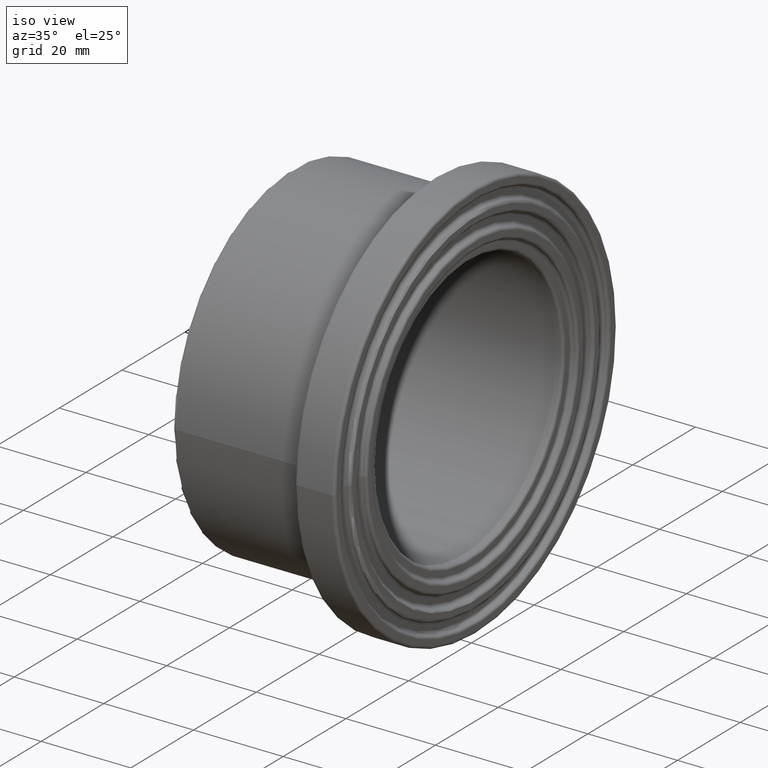
[diagram: clean part render]
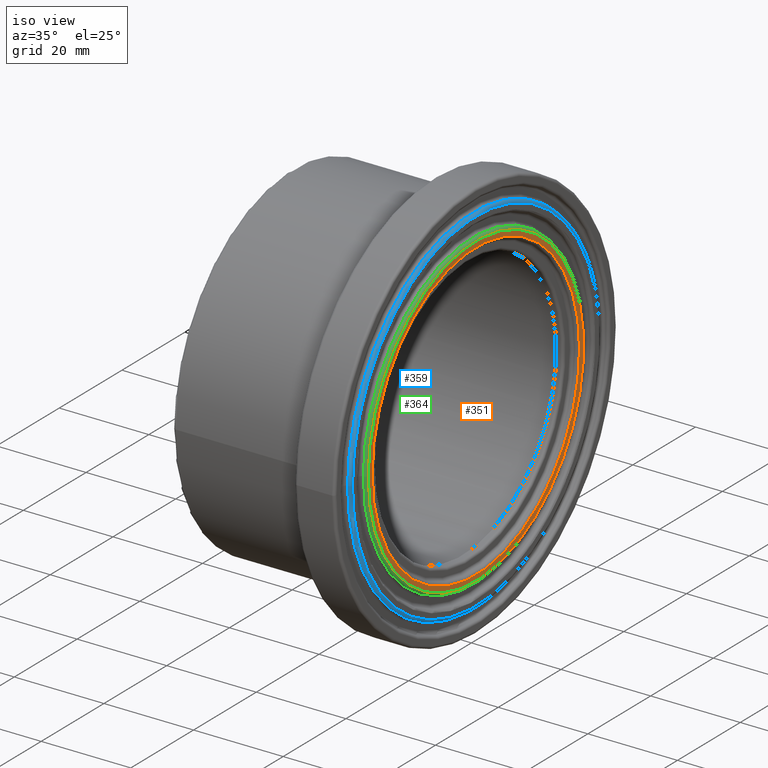
[diagram: same view with three faces highlighted in distinct colors, each labeled with its STEP entity id]
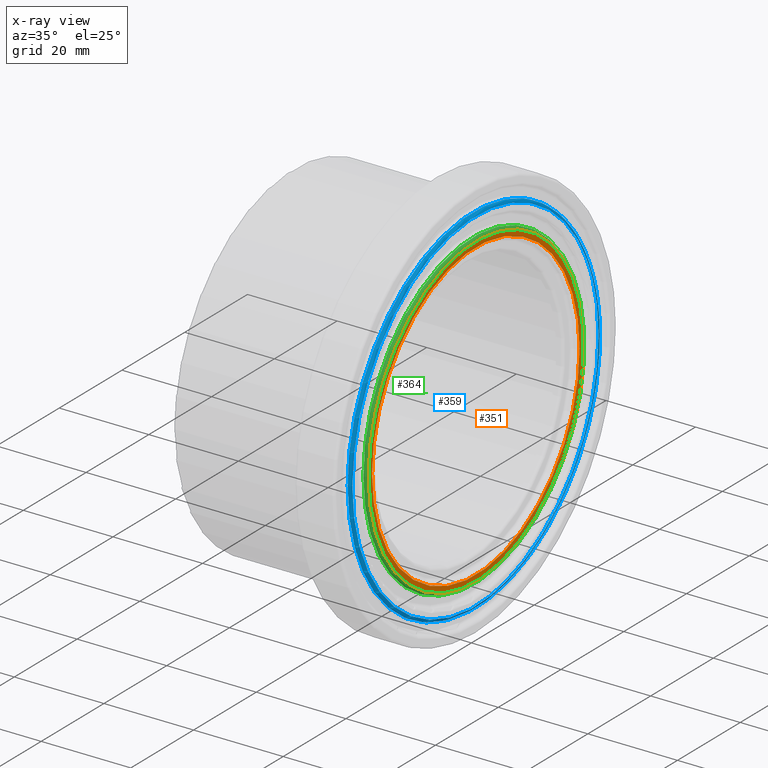
[diagram: x-ray of the same camera — body ghosted, the three highlighted faces saturated]
A machine part, iso view with three faces highlighted in distinct colors.
The next image is the same camera in x-ray (body ghosted, the three faces saturated) — at least one of them is partly hidden behind the body in this view.
Their STEP definitions:

[orange] entity #351 — the highlighted planar face has unit normal (1, 0, 0).
#25=PLANE('',#393);
#39=FACE_BOUND('',#112,.T.);
#72=FACE_OUTER_BOUND('',#111,.T.);
#111=EDGE_LOOP('',(#276));
#112=EDGE_LOOP('',(#277));
#171=CIRCLE('',#392,33.0675);
#172=CIRCLE('',#394,34.32);
#204=VERTEX_POINT('',#599);
#205=VERTEX_POINT('',#602);
#237=EDGE_CURVE('',#204,#204,#171,.T.);
#238=EDGE_CURVE('',#205,#205,#172,.T.);
#276=ORIENTED_EDGE('',*,*,#238,.F.);
#277=ORIENTED_EDGE('',*,*,#237,.F.);
#351=ADVANCED_FACE('',(#72,#39),#25,.T.);
#392=AXIS2_PLACEMENT_3D('',#600,#472,#473);
#393=AXIS2_PLACEMENT_3D('',#601,#474,#475);
#394=AXIS2_PLACEMENT_3D('',#603,#476,#477);
#472=DIRECTION('center_axis',(1.,0.,0.));
#473=DIRECTION('ref_axis',(0.,1.,6.12323399573677E-17));
#474=DIRECTION('center_axis',(1.,0.,0.));
#475=DIRECTION('ref_axis',(0.,0.,-1.));
#476=DIRECTION('center_axis',(-1.,0.,0.));
#477=DIRECTION('ref_axis',(0.,1.,6.12323399573677E-17));
#599=CARTESIAN_POINT('',(41.,-33.0675,-6.07440120462076E-15));
#600=CARTESIAN_POINT('Origin',(41.,0.,0.));
#601=CARTESIAN_POINT('Origin',(41.,-34.95,0.));
#602=CARTESIAN_POINT('',(41.,-34.32,2.10149390733686E-15));
#603=CARTESIAN_POINT('Origin',(41.,0.,0.));

[blue] entity #359 — the highlighted toroidal blend (fillet) surface has major radius 39.345 mm and minor (blend) radius 0.63 mm.
#47=FACE_BOUND('',#128,.T.);
#80=FACE_OUTER_BOUND('',#127,.T.);
#127=EDGE_LOOP('',(#292));
#128=EDGE_LOOP('',(#293));
#180=CIRCLE('',#409,39.975);
#181=CIRCLE('',#411,39.345);
#213=VERTEX_POINT('',#625);
#214=VERTEX_POINT('',#628);
#246=EDGE_CURVE('',#213,#213,#180,.T.);
#247=EDGE_CURVE('',#214,#214,#181,.T.);
#292=ORIENTED_EDGE('',*,*,#247,.T.);
#293=ORIENTED_EDGE('',*,*,#246,.T.);
#336=TOROIDAL_SURFACE('',#410,39.345,0.63);
#359=ADVANCED_FACE('',(#80,#47),#336,.T.);
#409=AXIS2_PLACEMENT_3D('',#626,#506,#507);
#410=AXIS2_PLACEMENT_3D('',#627,#508,#509);
#411=AXIS2_PLACEMENT_3D('',#629,#510,#511);
#506=DIRECTION('center_axis',(1.,0.,0.));
#507=DIRECTION('ref_axis',(0.,1.,6.12323399573677E-17));
#508=DIRECTION('center_axis',(-1.,0.,0.));
#509=DIRECTION('ref_axis',(0.,0.,1.));
#510=DIRECTION('center_axis',(-1.,0.,0.));
#511=DIRECTION('ref_axis',(0.,1.,6.12323399573677E-17));
#625=CARTESIAN_POINT('',(40.37,-39.975,-7.34328836938732E-15));
#626=CARTESIAN_POINT('Origin',(40.37,0.,0.));
#627=CARTESIAN_POINT('Origin',(40.37,0.,0.));
#628=CARTESIAN_POINT('',(41.,-39.345,2.40918641562263E-15));
#629=CARTESIAN_POINT('Origin',(41.,0.,0.));

[green] entity #364 — the highlighted toroidal blend (fillet) surface has major radius 34.32 mm and minor (blend) radius 0.63 mm.
#52=FACE_BOUND('',#138,.T.);
#85=FACE_OUTER_BOUND('',#137,.T.);
#137=EDGE_LOOP('',(#302));
#138=EDGE_LOOP('',(#303));
#172=CIRCLE('',#394,34.32);
#187=CIRCLE('',#422,34.95);
#205=VERTEX_POINT('',#602);
#220=VERTEX_POINT('',#645);
#238=EDGE_CURVE('',#205,#205,#172,.T.);
#253=EDGE_CURVE('',#220,#220,#187,.T.);
#302=ORIENTED_EDGE('',*,*,#238,.T.);
#303=ORIENTED_EDGE('',*,*,#253,.T.);
#338=TOROIDAL_SURFACE('',#421,34.32,0.63);
#364=ADVANCED_FACE('',(#85,#52),#338,.T.);
#394=AXIS2_PLACEMENT_3D('',#603,#476,#477);
#421=AXIS2_PLACEMENT_3D('',#644,#530,#531);
#422=AXIS2_PLACEMENT_3D('',#646,#532,#533);
#476=DIRECTION('center_axis',(-1.,0.,0.));
#477=DIRECTION('ref_axis',(0.,1.,6.12323399573677E-17));
#530=DIRECTION('center_axis',(-1.,0.,0.));
#531=DIRECTION('ref_axis',(0.,0.,1.));
#532=DIRECTION('center_axis',(1.,0.,0.));
#533=DIRECTION('ref_axis',(0.,1.,6.12323399573677E-17));
#602=CARTESIAN_POINT('',(41.,-34.32,2.10149390733686E-15));
#603=CARTESIAN_POINT('Origin',(41.,0.,0.));
#644=CARTESIAN_POINT('Origin',(40.37,0.,0.));
#645=CARTESIAN_POINT('',(40.37,-34.95,-6.42021084453E-15));
#646=CARTESIAN_POINT('Origin',(40.37,0.,0.));